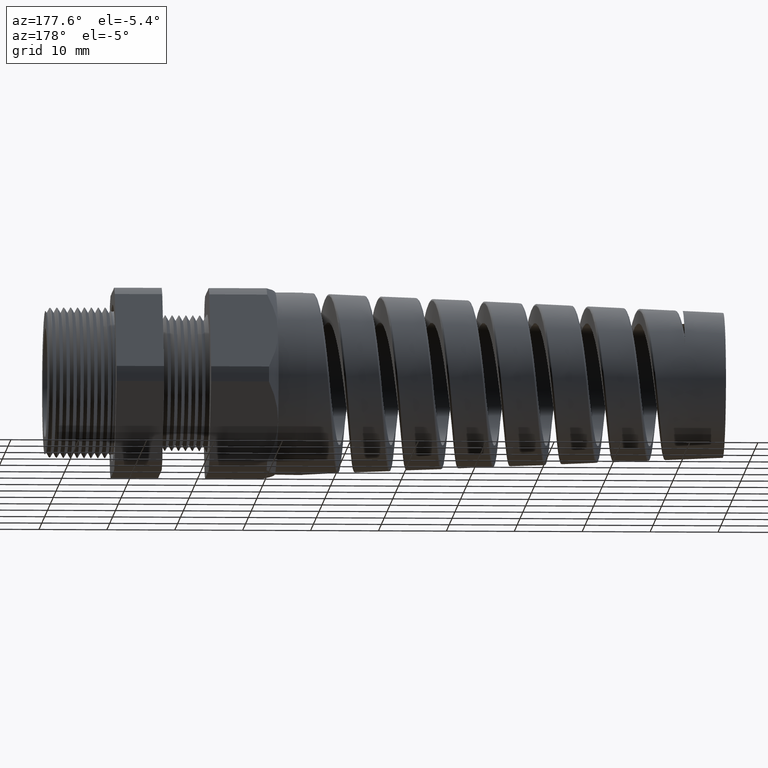
[diagram: clean part render]
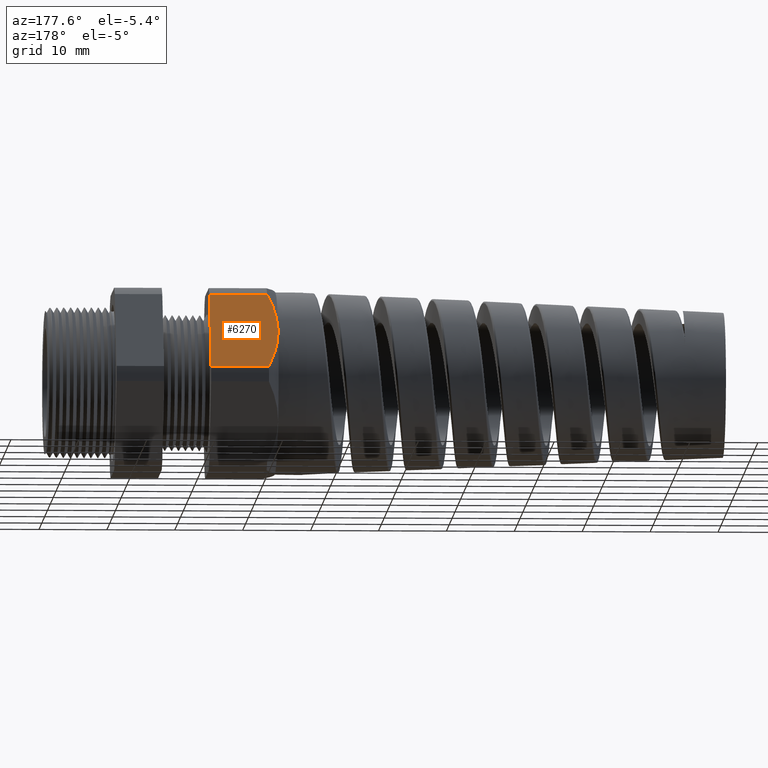
[diagram: same view with one face highlighted and labeled with its STEP entity id]
A machine part, auxiliary view. The second image highlights one B-rep face of the part: STEP entity #6270.
In plain terms, the highlighted planar face has unit normal (0, 0.866, 0.5).
Its self-contained STEP definition (entity closure, byte-faithful):
#226 = VERTEX_POINT ( 'NONE', #2092 ) ;
#2092 = CARTESIAN_POINT ( 'NONE',  ( -1.251889763779527200, 0.4589934640057528000, 0.2650000000000001200 ) ) ;
#6114 = EDGE_LOOP ( 'NONE', ( #6117, #6250, #6188, #14107, #6281 ) ) ;
#6117 = ORIENTED_EDGE ( 'NONE', *, *, #6272, .T. ) ;
#6186 = EDGE_CURVE ( 'NONE', #226, #14084, #11015, .T. ) ;
#6188 = ORIENTED_EDGE ( 'NONE', *, *, #6186, .T. ) ;
#6250 = ORIENTED_EDGE ( 'NONE', *, *, #6258, .T. ) ;
#6258 = EDGE_CURVE ( 'NONE', #14099, #226, #11589, .T. ) ;
#6270 = ADVANCED_FACE ( 'NONE', ( #11625 ), #11617, .T. ) ;
#6272 = EDGE_CURVE ( 'NONE', #6274, #14099, #11618, .T. ) ;
#6274 = VERTEX_POINT ( 'NONE', #11669 ) ;
#6281 = ORIENTED_EDGE ( 'NONE', *, *, #6283, .F. ) ;
#6283 = EDGE_CURVE ( 'NONE', #6274, #6292, #11654, .T. ) ;
#6292 = VERTEX_POINT ( 'NONE', #11691 ) ;
#10993 = CARTESIAN_POINT ( 'NONE',  ( -1.193589763779527600, 0.3313250556190263700, 0.4861281698472626500 ) ) ;
#10994 = CARTESIAN_POINT ( 'NONE',  ( -1.211241480774603500, 0.3516599709661864500, 0.4509070632983694900 ) ) ;
#10995 = CARTESIAN_POINT ( 'NONE',  ( -1.226019315843662700, 0.3726775389205839200, 0.4145035677498211700 ) ) ;
#10996 = CARTESIAN_POINT ( 'NONE',  ( -1.246312732867944200, 0.4152540171503038000, 0.3407589442485963200 ) ) ;
#10997 = CARTESIAN_POINT ( 'NONE',  ( -1.251889763779527200, 0.4369033769668392900, 0.3032611530950170000 ) ) ;
#10998 = CARTESIAN_POINT ( 'NONE',  ( -1.251889763779527200, 0.4589934640057528000, 0.2650000000000001200 ) ) ;
#11015 = B_SPLINE_CURVE_WITH_KNOTS ( 'NONE', 3,
 ( #10998, #10997, #10996, #10995, #10994, #10993 ),
 .UNSPECIFIED., .F., .F.,
 ( 4, 2, 4 ),
 ( 0.006656663749349987600, 0.009982589261723330600, 0.01330851477409667600 ),
 .UNSPECIFIED. ) ;
#11589 = B_SPLINE_CURVE_WITH_KNOTS ( 'NONE', 3,
 ( #11591, #11590, #11641, #11640, #11639, #11638, #11637, #11636, #11635, #11634 ),
 .UNSPECIFIED., .F., .F.,
 ( 4, 2, 2, 2, 4 ),
 ( 2.483250567286307800E-007, 0.003328456037203358900, 0.004992559893276674600, 0.005824611821313331100, 0.006656663749349987600 ),
 .UNSPECIFIED. ) ;
#11590 = CARTESIAN_POINT ( 'NONE',  ( -1.211219648637085000, 0.5663521078376414500, 0.07904937425147755300 ) ) ;
#11591 = CARTESIAN_POINT ( 'NONE',  ( -1.193589763779527600, 0.5866618723924790200, 0.04387183015273759400 ) ) ;
#11611 = VECTOR ( 'NONE', #11675, 39.37007874015748100 ) ;
#11612 = CARTESIAN_POINT ( 'NONE',  ( 0.08000000000000023800, 0.5866618723924790200, 0.04387183015273755900 ) ) ;
#11613 = DIRECTION ( 'NONE',  ( 0.0000000000000000000, -0.4999999999999998900, 0.8660254037844386000 ) ) ;
#11614 = DIRECTION ( 'NONE',  ( 0.0000000000000000000, 0.8660254037844387100, 0.4999999999999999400 ) ) ;
#11615 = CARTESIAN_POINT ( 'NONE',  ( 0.08000000000000023800, 0.3313250556190263700, 0.4861281698472627000 ) ) ;
#11616 = AXIS2_PLACEMENT_3D ( 'NONE', #11615, #11614, #11613 ) ;
#11617 = PLANE ( 'NONE',  #11616 ) ;
#11618 = LINE ( 'NONE', #11612, #11611 ) ;
#11625 = FACE_OUTER_BOUND ( 'NONE', #6114, .T. ) ;
#11634 = CARTESIAN_POINT ( 'NONE',  ( -1.251889763779527200, 0.4589934640057528000, 0.2650000000000001200 ) ) ;
#11635 = CARTESIAN_POINT ( 'NONE',  ( -1.251889763779527000, 0.4645197752363700000, 0.2554281481701323700 ) ) ;
#11636 = CARTESIAN_POINT ( 'NONE',  ( -1.251540037294434700, 0.4700966316160715700, 0.2457687495739749000 ) ) ;
#11637 = CARTESIAN_POINT ( 'NONE',  ( -1.250150991423770700, 0.4811768528785426200, 0.2265772433882701500 ) ) ;
#11638 = CARTESIAN_POINT ( 'NONE',  ( -1.249116214783385600, 0.4866745645865462900, 0.2170549273846412200 ) ) ;
#11639 = CARTESIAN_POINT ( 'NONE',  ( -1.245052733735574100, 0.5030481801450605900, 0.1886949933336943000 ) ) ;
#11640 = CARTESIAN_POINT ( 'NONE',  ( -1.241064579270533500, 0.5138045271803674000, 0.1700644537647001100 ) ) ;
#11641 = CARTESIAN_POINT ( 'NONE',  ( -1.225791965079113100, 0.5456613404998793500, 0.1148868345280683000 ) ) ;
#11651 = DIRECTION ( 'NONE',  ( 0.0000000000000000000, -0.4999999999999998900, 0.8660254037844386000 ) ) ;
#11652 = VECTOR ( 'NONE', #11651, 39.37007874015748100 ) ;
#11653 = CARTESIAN_POINT ( 'NONE',  ( -0.8581889763779526600, 0.5591184640057527100, 0.09157841289216625500 ) ) ;
#11654 = LINE ( 'NONE', #11653, #11652 ) ;
#11669 = CARTESIAN_POINT ( 'NONE',  ( -0.8581889763779526600, 0.5866618723924790200, 0.04387183015273755900 ) ) ;
#11675 = DIRECTION ( 'NONE',  ( -1.000000000000000000, 0.0000000000000000000, 0.0000000000000000000 ) ) ;
#11691 = CARTESIAN_POINT ( 'NONE',  ( -0.8581889763779526600, 0.3313250556190263700, 0.4861281698472626500 ) ) ;
#12349 = CARTESIAN_POINT ( 'NONE',  ( -1.193589763779527600, 0.3313250556190263700, 0.4861281698472626500 ) ) ;
#12399 = DIRECTION ( 'NONE',  ( -1.000000000000000000, 0.0000000000000000000, 0.0000000000000000000 ) ) ;
#12400 = VECTOR ( 'NONE', #12399, 39.37007874015748100 ) ;
#12401 = CARTESIAN_POINT ( 'NONE',  ( 0.08000000000000023800, 0.3313250556190263700, 0.4861281698472626500 ) ) ;
#12402 = LINE ( 'NONE', #12401, #12400 ) ;
#12423 = CARTESIAN_POINT ( 'NONE',  ( -1.193589763779527600, 0.5866618723924790200, 0.04387183015273759400 ) ) ;
#14084 = VERTEX_POINT ( 'NONE', #12349 ) ;
#14099 = VERTEX_POINT ( 'NONE', #12423 ) ;
#14107 = ORIENTED_EDGE ( 'NONE', *, *, #14108, .F. ) ;
#14108 = EDGE_CURVE ( 'NONE', #6292, #14084, #12402, .T. ) ;